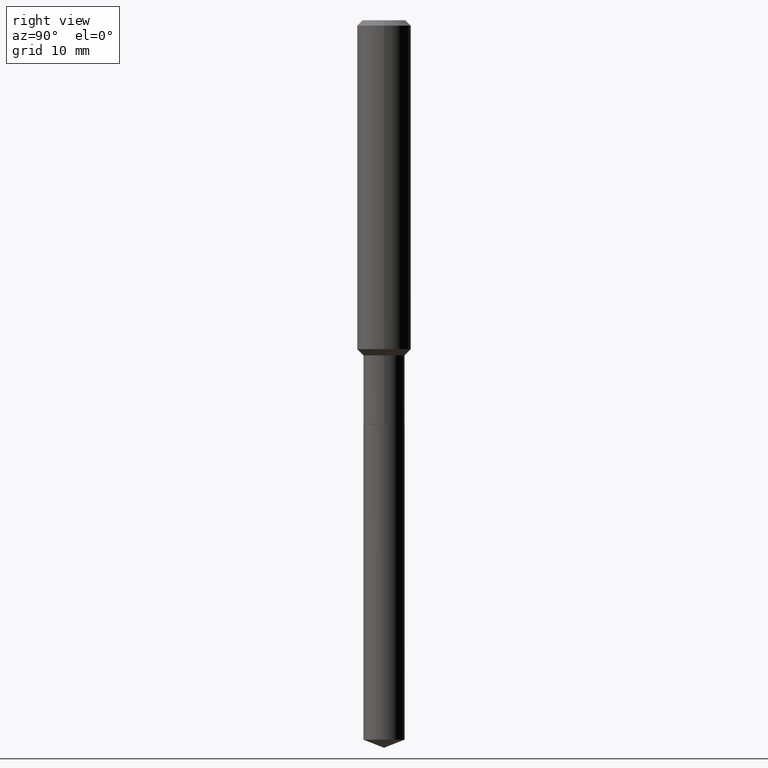
[diagram: clean part render]
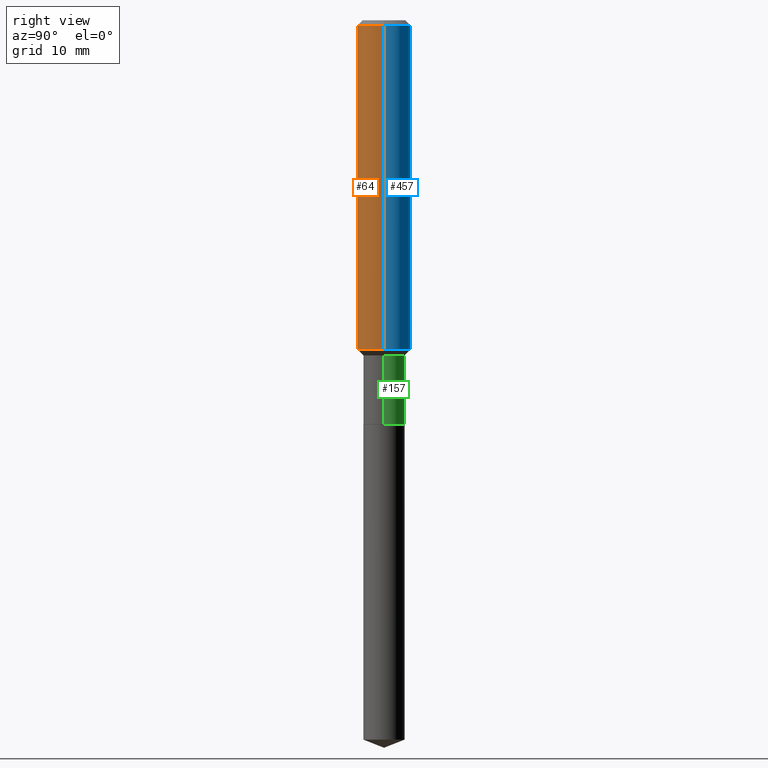
[diagram: same view with three faces highlighted in distinct colors, each labeled with its STEP entity id]
A machine part, right view with three faces highlighted in distinct colors.
Their STEP definitions:

[orange] entity #64 — the highlighted cylindrical surface (edge-blend (fillet) strip) has radius 2.9997 mm, axis along (-0, 0, 1).
#3 = AXIS2_PLACEMENT_3D ( 'NONE', #446, #480, #295 ) ;
#23 = FACE_OUTER_BOUND ( 'NONE', #242, .T. ) ;
#37 = LINE ( 'NONE', #342, #269 ) ;
#64 = ADVANCED_FACE ( 'NONE', ( #23 ), #255, .T. ) ;
#69 = VERTEX_POINT ( 'NONE', #174 ) ;
#72 = ORIENTED_EDGE ( 'NONE', *, *, #109, .T. ) ;
#87 = AXIS2_PLACEMENT_3D ( 'NONE', #236, #383, #247 ) ;
#92 = CARTESIAN_POINT ( 'NONE',  ( 0.1181000000000001632, -5.857134519976318154E-15, -1.441350000000000131 ) ) ;
#109 = EDGE_CURVE ( 'NONE', #362, #463, #258, .T. ) ;
#143 = DIRECTION ( 'NONE',  ( -2.445468806185136597E-29, 3.491481338843145583E-15, 1.000000000000000000 ) ) ;
#148 = ORIENTED_EDGE ( 'NONE', *, *, #282, .F. ) ;
#164 = CARTESIAN_POINT ( 'NONE',  ( -0.1181000000000000799, 8.391509709326788873E-16, -5.809262341591047988E-30 ) ) ;
#170 = ORIENTED_EDGE ( 'NONE', *, *, #215, .T. ) ;
#174 = CARTESIAN_POINT ( 'NONE',  ( 0.1180999999999999966, -9.071566814582237199E-16, -0.02362000000000014088 ) ) ;
#182 = VERTEX_POINT ( 'NONE', #415 ) ;
#188 = DIRECTION ( 'NONE',  ( -2.445468806185136877E-29, 3.491481338843145188E-15, 1.000000000000000000 ) ) ;
#215 = EDGE_CURVE ( 'NONE', #463, #69, #37, .T. ) ;
#219 = DIRECTION ( 'NONE',  ( 1.000000000000000000, -6.982962677686270655E-15, 0.000000000000000000 ) ) ;
#227 = CIRCLE ( 'NONE', #87, 0.1180999999999999966 ) ;
#236 = CARTESIAN_POINT ( 'NONE',  ( 5.776197320209327532E-31, -8.246878922347559293E-17, -0.02362000000000014088 ) ) ;
#239 = CARTESIAN_POINT ( 'NONE',  ( -0.1181000000000001632, -4.193295656808889328E-15, -1.441350000000000131 ) ) ;
#242 = EDGE_LOOP ( 'NONE', ( #439, #72, #170, #148 ) ) ;
#247 = DIRECTION ( 'NONE',  ( 1.000000000000000000, -6.982962677686266711E-15, 0.000000000000000000 ) ) ;
#255 = CYLINDRICAL_SURFACE ( 'NONE', #3, 0.1181000000000000799 ) ;
#258 = CIRCLE ( 'NONE', #275, 0.1181000000000001632 ) ;
#269 = VECTOR ( 'NONE', #188, 39.37007874015748143 ) ;
#275 = AXIS2_PLACEMENT_3D ( 'NONE', #335, #143, #219 ) ;
#282 = EDGE_CURVE ( 'NONE', #182, #69, #227, .T. ) ;
#295 = DIRECTION ( 'NONE',  ( 1.000000000000000000, -6.982962677686266711E-15, 4.876176775795936353E-29 ) ) ;
#335 = CARTESIAN_POINT ( 'NONE',  ( 3.524776463794946972E-29, -5.032446627741569103E-15, -1.441350000000000131 ) ) ;
#342 = CARTESIAN_POINT ( 'NONE',  ( 0.1181000000000000799, -8.246878922347486570E-16, 5.758764772215004644E-30 ) ) ;
#353 = EDGE_CURVE ( 'NONE', #362, #182, #358, .T. ) ;
#358 = LINE ( 'NONE', #164, #459 ) ;
#362 = VERTEX_POINT ( 'NONE', #239 ) ;
#383 = DIRECTION ( 'NONE',  ( -2.445468806185136597E-29, 3.491481338843145583E-15, 1.000000000000000000 ) ) ;
#392 = DIRECTION ( 'NONE',  ( -2.445468806185136877E-29, 3.491481338843145188E-15, 1.000000000000000000 ) ) ;
#415 = CARTESIAN_POINT ( 'NONE',  ( -0.1180999999999999966, -1.718306737549842702E-15, -0.02362000000000014088 ) ) ;
#439 = ORIENTED_EDGE ( 'NONE', *, *, #353, .F. ) ;
#446 = CARTESIAN_POINT ( 'NONE',  ( 0.000000000000000000, 0.000000000000000000, 0.000000000000000000 ) ) ;
#459 = VECTOR ( 'NONE', #392, 39.37007874015748143 ) ;
#463 = VERTEX_POINT ( 'NONE', #92 ) ;
#480 = DIRECTION ( 'NONE',  ( -2.445468806185136597E-29, 3.491481338843145583E-15, 1.000000000000000000 ) ) ;

[blue] entity #457 — the highlighted cylindrical surface (edge-blend (fillet) strip) has radius 2.9997 mm, axis along (-0, 0, 1).
#8 = DIRECTION ( 'NONE',  ( 1.000000000000000000, -6.982962677686270655E-15, 0.000000000000000000 ) ) ;
#19 = CARTESIAN_POINT ( 'NONE',  ( 0.000000000000000000, 0.000000000000000000, 0.000000000000000000 ) ) ;
#37 = LINE ( 'NONE', #342, #269 ) ;
#49 = ORIENTED_EDGE ( 'NONE', *, *, #296, .T. ) ;
#69 = VERTEX_POINT ( 'NONE', #174 ) ;
#78 = CIRCLE ( 'NONE', #95, 0.1181000000000001632 ) ;
#92 = CARTESIAN_POINT ( 'NONE',  ( 0.1181000000000001632, -5.857134519976318154E-15, -1.441350000000000131 ) ) ;
#95 = AXIS2_PLACEMENT_3D ( 'NONE', #354, #314, #8 ) ;
#104 = DIRECTION ( 'NONE',  ( 1.000000000000000000, -6.982962677686266711E-15, 0.000000000000000000 ) ) ;
#125 = DIRECTION ( 'NONE',  ( -2.445468806185136597E-29, 3.491481338843145583E-15, 1.000000000000000000 ) ) ;
#129 = DIRECTION ( 'NONE',  ( 1.000000000000000000, -6.982962677686266711E-15, 4.876176775795936353E-29 ) ) ;
#164 = CARTESIAN_POINT ( 'NONE',  ( -0.1181000000000000799, 8.391509709326788873E-16, -5.809262341591047988E-30 ) ) ;
#168 = ORIENTED_EDGE ( 'NONE', *, *, #353, .T. ) ;
#174 = CARTESIAN_POINT ( 'NONE',  ( 0.1180999999999999966, -9.071566814582237199E-16, -0.02362000000000014088 ) ) ;
#182 = VERTEX_POINT ( 'NONE', #415 ) ;
#183 = DIRECTION ( 'NONE',  ( -2.445468806185136597E-29, 3.491481338843145583E-15, 1.000000000000000000 ) ) ;
#188 = DIRECTION ( 'NONE',  ( -2.445468806185136877E-29, 3.491481338843145188E-15, 1.000000000000000000 ) ) ;
#207 = EDGE_LOOP ( 'NONE', ( #49, #168, #325, #288 ) ) ;
#215 = EDGE_CURVE ( 'NONE', #463, #69, #37, .T. ) ;
#239 = CARTESIAN_POINT ( 'NONE',  ( -0.1181000000000001632, -4.193295656808889328E-15, -1.441350000000000131 ) ) ;
#269 = VECTOR ( 'NONE', #188, 39.37007874015748143 ) ;
#288 = ORIENTED_EDGE ( 'NONE', *, *, #215, .F. ) ;
#292 = CARTESIAN_POINT ( 'NONE',  ( 5.776197320209327532E-31, -8.246878922347559293E-17, -0.02362000000000014088 ) ) ;
#296 = EDGE_CURVE ( 'NONE', #463, #362, #78, .T. ) ;
#314 = DIRECTION ( 'NONE',  ( -2.445468806185136597E-29, 3.491481338843145583E-15, 1.000000000000000000 ) ) ;
#316 = CYLINDRICAL_SURFACE ( 'NONE', #409, 0.1181000000000000799 ) ;
#325 = ORIENTED_EDGE ( 'NONE', *, *, #484, .F. ) ;
#342 = CARTESIAN_POINT ( 'NONE',  ( 0.1181000000000000799, -8.246878922347486570E-16, 5.758764772215004644E-30 ) ) ;
#353 = EDGE_CURVE ( 'NONE', #362, #182, #358, .T. ) ;
#354 = CARTESIAN_POINT ( 'NONE',  ( 3.524776463794946972E-29, -5.032446627741569103E-15, -1.441350000000000131 ) ) ;
#358 = LINE ( 'NONE', #164, #459 ) ;
#362 = VERTEX_POINT ( 'NONE', #239 ) ;
#371 = CIRCLE ( 'NONE', #422, 0.1180999999999999966 ) ;
#392 = DIRECTION ( 'NONE',  ( -2.445468806185136877E-29, 3.491481338843145188E-15, 1.000000000000000000 ) ) ;
#394 = FACE_OUTER_BOUND ( 'NONE', #207, .T. ) ;
#409 = AXIS2_PLACEMENT_3D ( 'NONE', #19, #125, #129 ) ;
#415 = CARTESIAN_POINT ( 'NONE',  ( -0.1180999999999999966, -1.718306737549842702E-15, -0.02362000000000014088 ) ) ;
#422 = AXIS2_PLACEMENT_3D ( 'NONE', #292, #183, #104 ) ;
#457 = ADVANCED_FACE ( 'NONE', ( #394 ), #316, .T. ) ;
#459 = VECTOR ( 'NONE', #392, 39.37007874015748143 ) ;
#463 = VERTEX_POINT ( 'NONE', #92 ) ;
#484 = EDGE_CURVE ( 'NONE', #69, #182, #371, .T. ) ;

[green] entity #157 — the highlighted cylindrical surface (edge-blend (fillet) strip) has radius 2.3 mm, axis along (-0, 0, 1).
#15 = DIRECTION ( 'NONE',  ( 1.000000000000000000, -6.982962677686266711E-15, 0.000000000000000000 ) ) ;
#17 = CIRCLE ( 'NONE', #388, 0.09054999999999997773 ) ;
#25 = LINE ( 'NONE', #399, #220 ) ;
#33 = EDGE_LOOP ( 'NONE', ( #285, #323, #360, #315 ) ) ;
#45 = AXIS2_PLACEMENT_3D ( 'NONE', #201, #462, #15 ) ;
#76 = EDGE_CURVE ( 'NONE', #386, #318, #25, .T. ) ;
#88 = DIRECTION ( 'NONE',  ( -2.445468806185136597E-29, 3.491481338843145583E-15, 1.000000000000000000 ) ) ;
#117 = EDGE_CURVE ( 'NONE', #138, #320, #139, .T. ) ;
#135 = CARTESIAN_POINT ( 'NONE',  ( 0.09055000000000000548, -6.816419017823473414E-15, -1.771200000000000552 ) ) ;
#138 = VERTEX_POINT ( 'NONE', #291 ) ;
#139 = LINE ( 'NONE', #373, #261 ) ;
#157 = ADVANCED_FACE ( 'NONE', ( #310 ), #379, .T. ) ;
#167 = CARTESIAN_POINT ( 'NONE',  ( 0.09054999999999997773, -5.760944209091188969E-15, -1.468900000000000317 ) ) ;
#201 = CARTESIAN_POINT ( 'NONE',  ( 4.331414349515115307E-29, -6.184111747358981944E-15, -1.771200000000000552 ) ) ;
#208 = CARTESIAN_POINT ( 'NONE',  ( -0.09054999999999997773, -5.012977895762068866E-15, -1.468900000000000317 ) ) ;
#210 = AXIS2_PLACEMENT_3D ( 'NONE', #452, #451, #378 ) ;
#220 = VECTOR ( 'NONE', #298, 39.37007874015748143 ) ;
#244 = CARTESIAN_POINT ( 'NONE',  ( 3.592149129405347553E-29, -5.128636938626697499E-15, -1.468900000000000317 ) ) ;
#261 = VECTOR ( 'NONE', #407, 39.37007874015748143 ) ;
#277 = CIRCLE ( 'NONE', #45, 0.09055000000000000548 ) ;
#285 = ORIENTED_EDGE ( 'NONE', *, *, #428, .T. ) ;
#291 = CARTESIAN_POINT ( 'NONE',  ( -0.09055000000000000548, -5.012977895762068866E-15, -1.771200000000000552 ) ) ;
#298 = DIRECTION ( 'NONE',  ( -2.445468806185136877E-29, 3.491481338843145188E-15, 1.000000000000000000 ) ) ;
#310 = FACE_OUTER_BOUND ( 'NONE', #33, .T. ) ;
#315 = ORIENTED_EDGE ( 'NONE', *, *, #76, .F. ) ;
#318 = VERTEX_POINT ( 'NONE', #167 ) ;
#320 = VERTEX_POINT ( 'NONE', #208 ) ;
#323 = ORIENTED_EDGE ( 'NONE', *, *, #117, .T. ) ;
#332 = EDGE_CURVE ( 'NONE', #318, #320, #17, .T. ) ;
#360 = ORIENTED_EDGE ( 'NONE', *, *, #332, .F. ) ;
#373 = CARTESIAN_POINT ( 'NONE',  ( -0.09054999999999999161, 6.433964472307706587E-16, -4.454095724225816518E-30 ) ) ;
#378 = DIRECTION ( 'NONE',  ( 1.000000000000000000, -6.982962677686266711E-15, 4.876176775795935793E-29 ) ) ;
#379 = CYLINDRICAL_SURFACE ( 'NONE', #210, 0.09054999999999999161 ) ;
#386 = VERTEX_POINT ( 'NONE', #135 ) ;
#388 = AXIS2_PLACEMENT_3D ( 'NONE', #244, #88, #389 ) ;
#389 = DIRECTION ( 'NONE',  ( 1.000000000000000000, -6.982962677686268288E-15, 0.000000000000000000 ) ) ;
#399 = CARTESIAN_POINT ( 'NONE',  ( 0.09054999999999999161, -6.323072704644913710E-16, 4.415378070483219406E-30 ) ) ;
#407 = DIRECTION ( 'NONE',  ( -2.445468806185136877E-29, 3.491481338843145188E-15, 1.000000000000000000 ) ) ;
#428 = EDGE_CURVE ( 'NONE', #386, #138, #277, .T. ) ;
#451 = DIRECTION ( 'NONE',  ( -2.445468806185136597E-29, 3.491481338843145583E-15, 1.000000000000000000 ) ) ;
#452 = CARTESIAN_POINT ( 'NONE',  ( 0.000000000000000000, 0.000000000000000000, 0.000000000000000000 ) ) ;
#462 = DIRECTION ( 'NONE',  ( -2.445468806185136597E-29, 3.491481338843145583E-15, 1.000000000000000000 ) ) ;